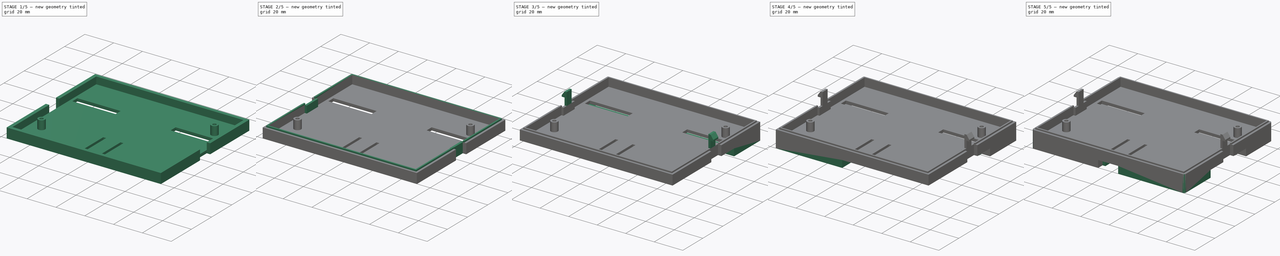
[diagram: build sequence overview — one tinted view per stage of 5, left to right]
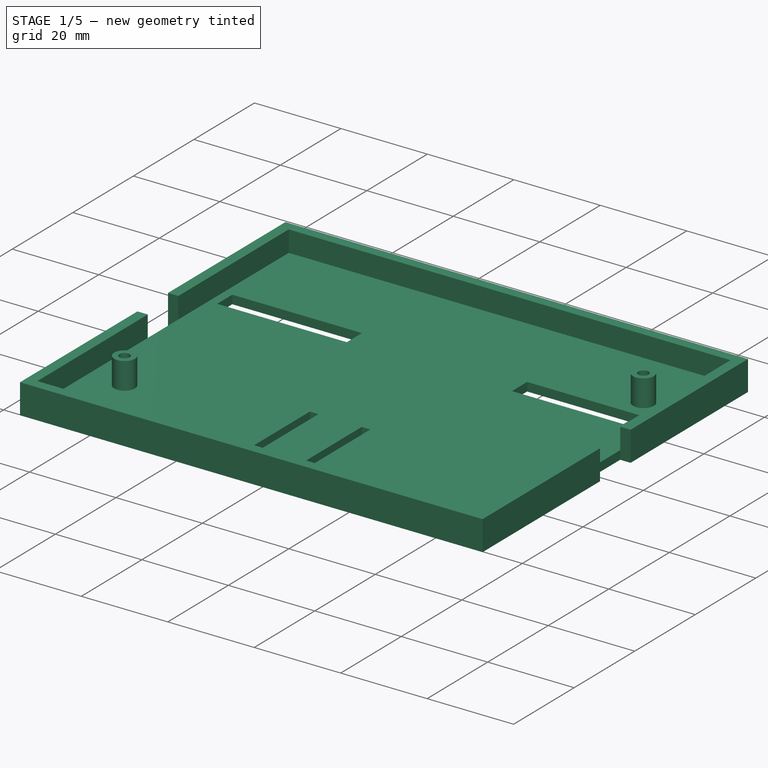
[diagram: stage 1 of 5 — iso view after this stage's code; geometry added in this stage tinted green]
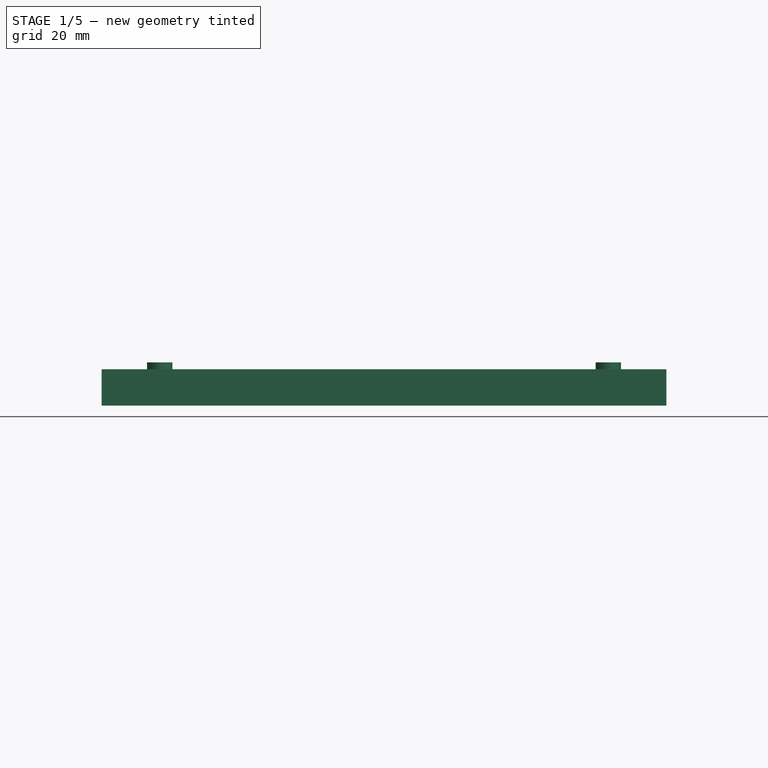
[diagram: stage 1 of 5 — front view after this stage's code; geometry added in this stage tinted green]
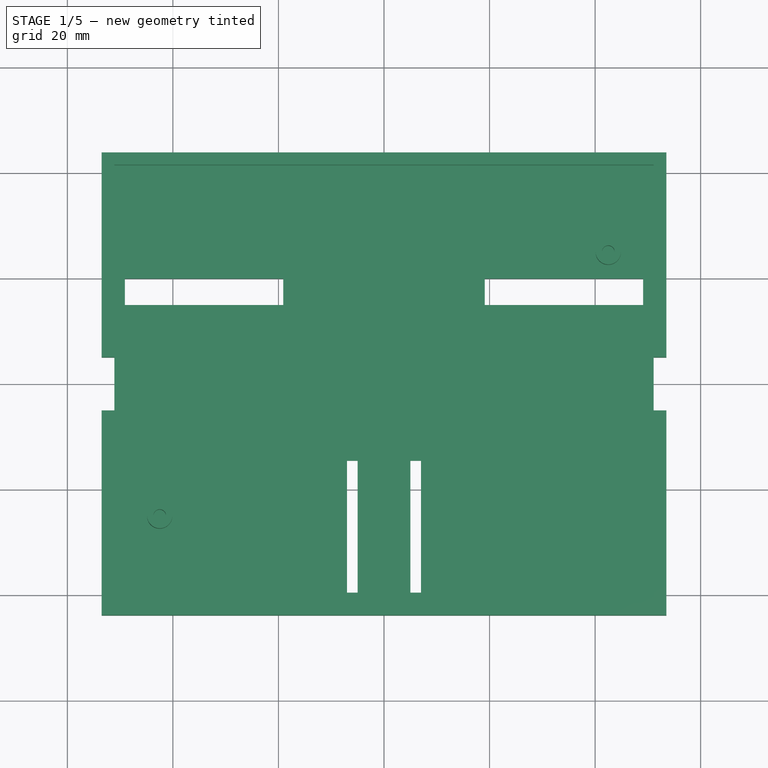
[diagram: stage 1 of 5 — top view after this stage's code; geometry added in this stage tinted green]
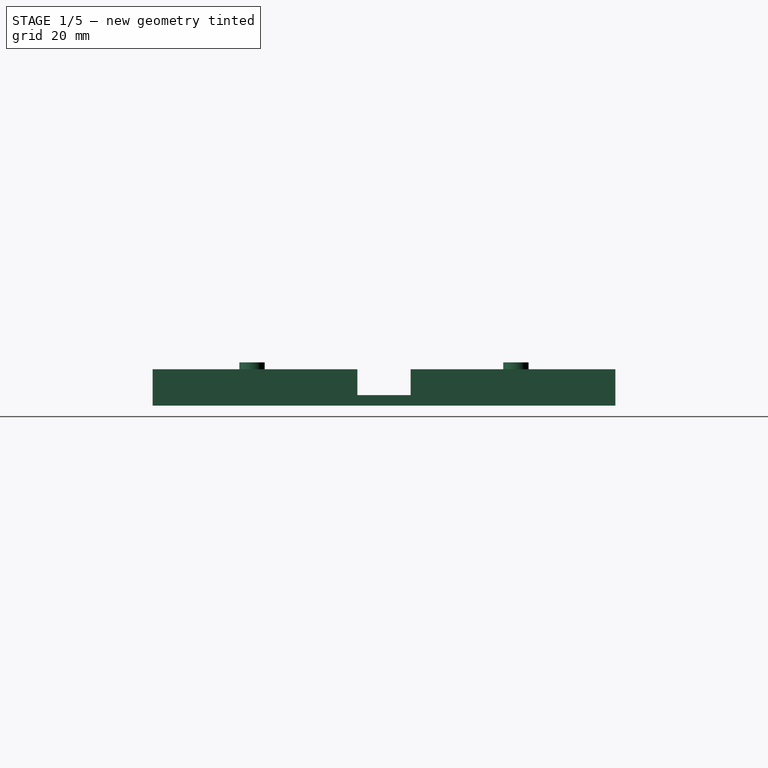
[diagram: stage 1 of 5 — right view after this stage's code; geometry added in this stage tinted green]
FCSTD DOCUMENT  (FreeCAD 1.0R39285 (Git))
Label: Base de la Pieza (2023-1283)
License: All rights reserved
LicenseURL: https://en.wikipedia.org/wiki/All_rights_reserved
objects: Sketcher::SketchObject×11, PartDesign::Pad×11, PartDesign::Mirrored×8, PartDesign::Chamfer×1, PartDesign::Fillet×1, PartDesign::Body×1
note: 78 computed .brp shape members not serialized (recipe doc carries the construction recipe); baked Part::Feature solids carry a one-line shape summary decoded from their .brp

FEATURE [Sketcher::SketchObject] Sketch
  ArcFitTolerance = 1e-06
  AttachmentSupport = -> [XY_Plane]
  FullyConstrained = true
  MakeInternals = false
  MapMode = 5
  sketch-geometry (21):
    g0: LineSegment StartX=-51.1 StartY=41.5 StartZ=0 EndX=-51.1 EndY=-41.5 EndZ=0
    g1: LineSegment StartX=-51.1 StartY=-41.5 StartZ=0 EndX=51.1 EndY=-41.5 EndZ=0
    g2: LineSegment StartX=51.1 StartY=-41.5 StartZ=0 EndX=51.1 EndY=41.5 EndZ=0
    g3: LineSegment StartX=51.1 StartY=41.5 StartZ=0 EndX=-51.1 EndY=41.5 EndZ=0
    g4: GeomPoint [constr] X=0 Y=0 Z=0
    g5: LineSegment StartX=19.1 StartY=20 StartZ=0 EndX=19.1 EndY=15 EndZ=0
    g6: LineSegment StartX=19.1 StartY=15 StartZ=0 EndX=49.1 EndY=15 EndZ=0
    g7: LineSegment StartX=49.1 StartY=15 StartZ=0 EndX=49.1 EndY=20 EndZ=0
    g8: LineSegment StartX=49.1 StartY=20 StartZ=0 EndX=19.1 EndY=20 EndZ=0
    g9: LineSegment StartX=-19.1 StartY=20 StartZ=0 EndX=-19.1 EndY=15 EndZ=0
    g10: LineSegment StartX=-19.1 StartY=15 StartZ=0 EndX=-49.1 EndY=15 EndZ=0
    g11: LineSegment StartX=-49.1 StartY=15 StartZ=0 EndX=-49.1 EndY=20 EndZ=0
    g12: LineSegment StartX=-49.1 StartY=20 StartZ=0 EndX=-19.1 EndY=20 EndZ=0
    g13: LineSegment StartX=5 StartY=-14.5 StartZ=0 EndX=5 EndY=-39.5 EndZ=0
    g14: LineSegment StartX=5 StartY=-39.5 StartZ=0 EndX=7 EndY=-39.5 EndZ=0
    g15: LineSegment StartX=7 StartY=-39.5 StartZ=0 EndX=7 EndY=-14.5 EndZ=0
    g16: LineSegment StartX=7 StartY=-14.5 StartZ=0 EndX=5 EndY=-14.5 EndZ=0
    g17: LineSegment StartX=-5 StartY=-14.5 StartZ=0 EndX=-5 EndY=-39.5 EndZ=0
    g18: LineSegment StartX=-5 StartY=-39.5 StartZ=0 EndX=-7 EndY=-39.5 EndZ=0
    g19: LineSegment StartX=-7 StartY=-39.5 StartZ=0 EndX=-7 EndY=-14.5 EndZ=0
    g20: LineSegment StartX=-7 StartY=-14.5 StartZ=0 EndX=-5 EndY=-14.5 EndZ=0
  constraints (58):
    c: Coincident(g0,g1)
    c: Coincident(g1,g2)
    c: Coincident(g2,g3)
    c: Coincident(g3,g0)
    c: Vertical(g0)
    c: Vertical(g2)
    c: Horizontal(g1)
    c: Horizontal(g3)
    c: Symmetric(g2,g0,g4)
    c: Coincident(g4,g-1)
    c: DistanceX(g3,g3) = 102.2
    c: DistanceY(g2,g2) = 83
    c: Coincident(g5,g6)
    c: Coincident(g6,g7)
    c: Coincident(g7,g8)
    c: Coincident(g8,g5)
    c: Vertical(g5)
    c: Vertical(g7)
    c: Horizontal(g6)
    c: Horizontal(g8)
    c: Distance(g-1,g6) = 15
    c: Distance(g7,g7) = 5
    c: Distance(g2,g7) = 2
    c: DistanceX(g8,g8) = 30
    c: Coincident(g9,g10)
    c: Coincident(g10,g11)
    c: Coincident(g11,g12)
    c: Coincident(g12,g9)
    c: Vertical(g9)
    c: Vertical(g11)
    c: Horizontal(g10)
    c: Horizontal(g12)
    c: Distance(g11,g11) = 5
    c: Symmetric(g9,g5,g-2)
    c: Equal(g8,g12)
    c: Coincident(g13,g14)
    c: Coincident(g14,g15)
    c: Coincident(g15,g16)
    c: Coincident(g16,g13)
    c: Vertical(g13)
    c: Vertical(g15)
    c: Horizontal(g14)
    c: Horizontal(g16)
    c: Distance(g16,g16) = 2
    c: Distance(g-2,g13) = 5
    c: DistanceY(g15,g15) = 25
    c: Distance(g1,g14) = 2
    c: Coincident(g17,g18)
    c: Coincident(g18,g19)
    c: Coincident(g19,g20)
    c: Coincident(g20,g17)
    c: Vertical(g17)
    c: Vertical(g19)
    c: Horizontal(g18)
    c: Horizontal(g20)
    c: Distance(g20,g20) = 2
    c: Symmetric(g17,g13,g-2)
    c: Equal(g17,g13)
FEATURE [PartDesign::Pad] Pad
  Direction = (0,0,1)
  Length = 2
  Length2 = 10
  Profile = -> Sketch
  ReferenceAxis = -> Sketch [N_Axis]
  Refine = true
  Suppressed = false
  Type = 0
FEATURE [Sketcher::SketchObject] Sketch001
  ArcFitTolerance = 1e-06
  AttachmentSupport = -> [Pad]
  FullyConstrained = true
  MakeInternals = false
  MapMode = 5
  Placement = pos=(0,0,2) rot=(0,0,1;0rad)
  sketch-geometry (4):
    g0: Circle CenterX=-42.5 CenterY=-25 CenterZ=0 NormalX=0 NormalY=0 NormalZ=1 AngleXU=0 Radius=1.2
    g1: Circle CenterX=-42.5 CenterY=-25 CenterZ=0 NormalX=0 NormalY=0 NormalZ=1 AngleXU=0 Radius=2.4
    g2: Circle CenterX=42.5 CenterY=25 CenterZ=0 NormalX=0 NormalY=0 NormalZ=1 AngleXU=0 Radius=1.2
    g3: Circle CenterX=42.5 CenterY=25 CenterZ=0 NormalX=0 NormalY=0 NormalZ=1 AngleXU=0 Radius=2.4
  constraints (10):
    c: Coincident(g1,g0)
    c: Coincident(g3,g2)
    c: Equal(g0,g2)
    c: Equal(g3,g1)
    c: Distance(g2,g-2) = 42.5
    c: Distance(g0,g-2) = 42.5
    c: Distance(g2,g-1) = 25
    c: Distance(g0,g-1) = 25
    c: Diameter(g2) = 2.4
    c: Diameter(g3) = 4.8
FEATURE [PartDesign::Pad] Pad001
  BaseFeature = -> Pad
  Direction = (0,0,1)
  Length = 6.2
  Length2 = 10
  Profile = -> Sketch001
  ReferenceAxis = -> Sketch001 [N_Axis]
  Refine = true
  Suppressed = false
  Type = 0
FEATURE [Sketcher::SketchObject] Sketch002
  ArcFitTolerance = 1e-06
  AttachmentSupport = -> [XY_Plane]
  ExternalGeometry = -> [Pad001]
  FullyConstrained = true
  MakeInternals = false
  MapMode = 5
  sketch-geometry (8):
    g0: LineSegment StartX=-51.1 StartY=41.5 StartZ=0 EndX=51.1 EndY=41.5 EndZ=0
    g1: LineSegment StartX=51.1 StartY=41.5 StartZ=0 EndX=51.1 EndY=5.05 EndZ=0
    g2: LineSegment StartX=51.1 StartY=5.05 StartZ=0 EndX=53.5 EndY=5.05 EndZ=0
    g3: LineSegment StartX=53.5 StartY=5.05 StartZ=0 EndX=53.5 EndY=43.85 EndZ=0
    g4: LineSegment StartX=53.5 StartY=43.85 StartZ=0 EndX=-53.5 EndY=43.85 EndZ=0
    g5: LineSegment StartX=-53.5 StartY=43.85 StartZ=0 EndX=-53.5 EndY=5.05 EndZ=0
    g6: LineSegment StartX=-51.1 StartY=41.5 StartZ=0 EndX=-51.1 EndY=5.05 EndZ=0
    g7: LineSegment StartX=-51.1 StartY=5.05 StartZ=0 EndX=-53.5 EndY=5.05 EndZ=0
  constraints (21):
    c: Coincident(g0,g-4)
    c: Coincident(g0,g-5)
    c: Coincident(g1,g0)
    c: PointOnObject(g1,g-5)
    c: Coincident(g2,g1)
    c: Horizontal(g2)
    c: Coincident(g3,g2)
    c: Vertical(g3)
    c: Coincident(g4,g3)
    c: Horizontal(g4)
    c: Coincident(g5,g4)
    c: Vertical(g5)
    c: Coincident(g6,g0)
    c: PointOnObject(g6,g-4)
    c: Coincident(g7,g6)
    c: Coincident(g7,g5)
    c: Horizontal(g7)
    c: Symmetric(g5,g2,g-2)
    c: Distance(g4,g4) = 107
    c: DistanceY(g-1,g3) = 43.85
    c: DistanceY(g-1,g2) = 5.05
FEATURE [PartDesign::Pad] Pad002
  BaseFeature = -> Pad001
  Direction = (0,0,1)
  Length = 6.9
  Length2 = 10
  Profile = -> Sketch002
  ReferenceAxis = -> Sketch002 [N_Axis]
  Refine = true
  Suppressed = false
  Type = 0
FEATURE [PartDesign::Mirrored] Mirrored
  BaseFeature = -> Pad002
  MirrorPlane = -> XZ_Plane
  Originals = -> [Pad002]
  Refine = true
  Suppressed = false
  TransformMode = 0
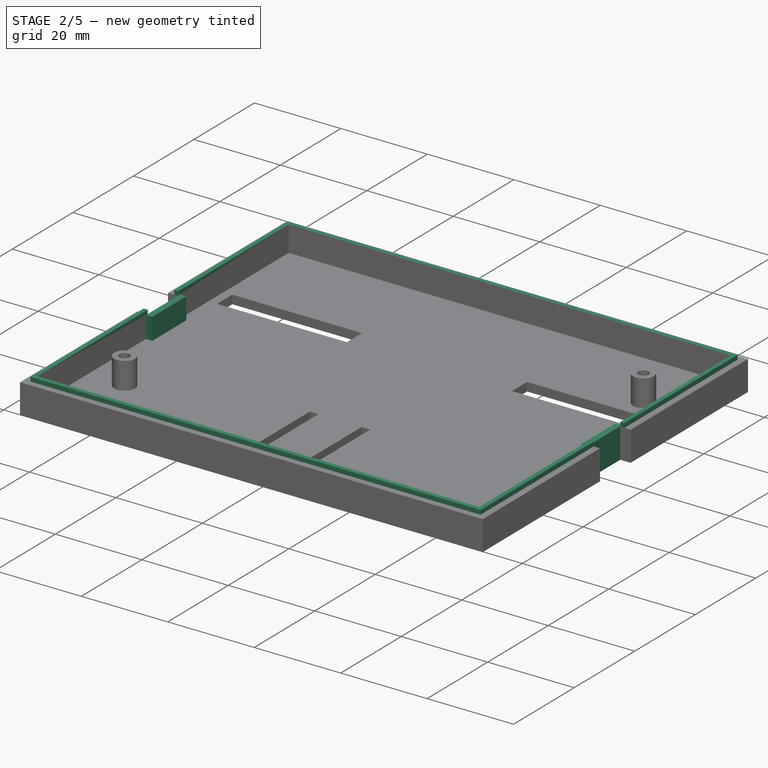
[diagram: stage 2 of 5 — iso view after this stage's code; geometry added in this stage tinted green]
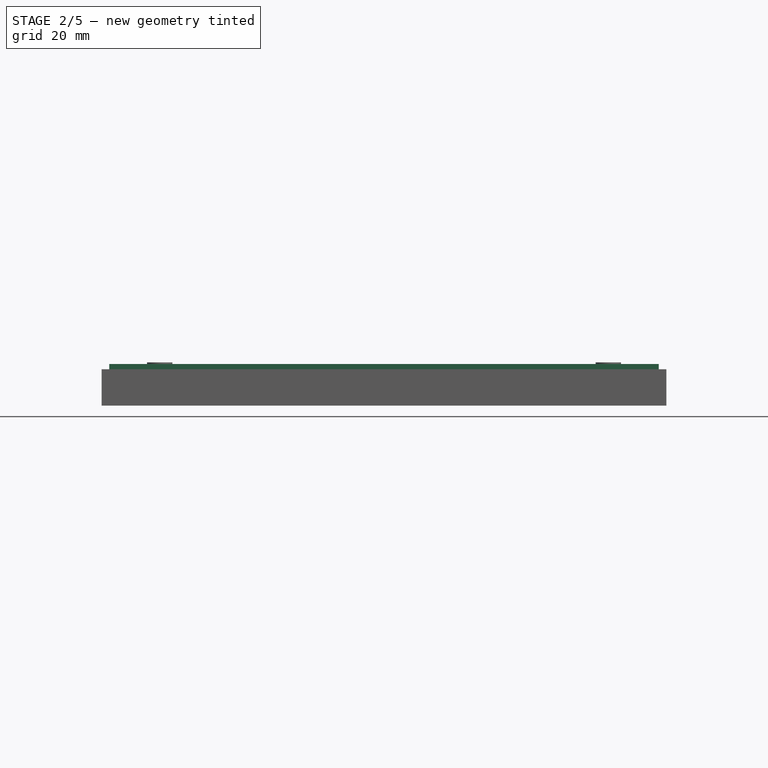
[diagram: stage 2 of 5 — front view after this stage's code; geometry added in this stage tinted green]
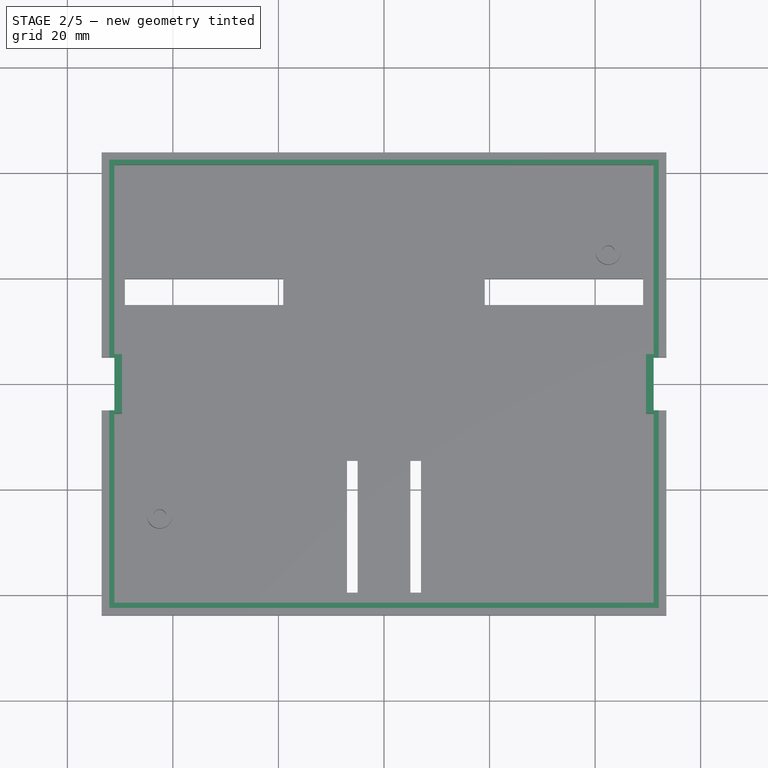
[diagram: stage 2 of 5 — top view after this stage's code; geometry added in this stage tinted green]
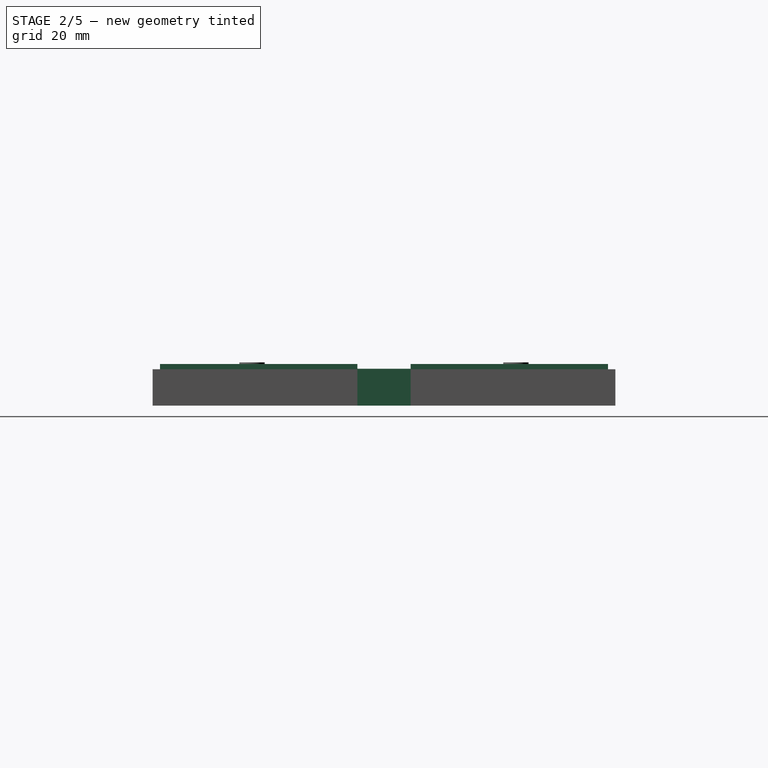
[diagram: stage 2 of 5 — right view after this stage's code; geometry added in this stage tinted green]
FEATURE [Sketcher::SketchObject] Sketch003
  ArcFitTolerance = 1e-06
  AttachmentSupport = -> [Mirrored]
  ExternalGeometry = -> [Mirrored]
  FullyConstrained = true
  MakeInternals = false
  MapMode = 5
  Placement = pos=(0,0,6.9) rot=(0,0,1;0rad)
  sketch-geometry (8):
    g0: LineSegment StartX=-51.1 StartY=5.05 StartZ=0 EndX=-51.1 EndY=41.5 EndZ=0
    g1: LineSegment StartX=-51.1 StartY=41.5 StartZ=0 EndX=51.1 EndY=41.5 EndZ=0
    g2: LineSegment StartX=51.1 StartY=41.5 StartZ=0 EndX=51.1 EndY=5.05 EndZ=0
    g3: LineSegment StartX=-51.1 StartY=5.05 StartZ=0 EndX=-52.05 EndY=5.05 EndZ=0
    g4: LineSegment StartX=-52.05 StartY=5.05 StartZ=0 EndX=-52.05 EndY=42.45 EndZ=0
    g5: LineSegment StartX=-52.05 StartY=42.45 StartZ=0 EndX=52.05 EndY=42.45 EndZ=0
    g6: LineSegment StartX=51.1 StartY=5.05 StartZ=0 EndX=52.05 EndY=5.05 EndZ=0
    g7: LineSegment StartX=52.05 StartY=5.05 StartZ=0 EndX=52.05 EndY=42.45 EndZ=0
  constraints (20):
    c: Coincident(g0,g-3)
    c: Coincident(g0,g-4)
    c: Coincident(g1,g0)
    c: Coincident(g1,g-5)
    c: Coincident(g2,g1)
    c: Coincident(g2,g-5)
    c: Coincident(g3,g0)
    c: Horizontal(g3)
    c: Coincident(g4,g3)
    c: Vertical(g4)
    c: Coincident(g5,g4)
    c: Horizontal(g5)
    c: Coincident(g6,g2)
    c: Horizontal(g6)
    c: Coincident(g7,g6)
    c: Coincident(g7,g5)
    c: Vertical(g7)
    c: Equal(g3,g6)
    c: Distance(g4,g0) = 0.95
    c: Distance(g5,g1) = 0.95
FEATURE [PartDesign::Pad] Pad003
  BaseFeature = -> Mirrored
  Direction = (0,0,1)
  Length = 1
  Length2 = 10
  Profile = -> Sketch003
  ReferenceAxis = -> Sketch003 [N_Axis]
  Refine = true
  Suppressed = false
  Type = 0
FEATURE [PartDesign::Mirrored] Mirrored001
  BaseFeature = -> Pad003
  MirrorPlane = -> XZ_Plane
  Originals = -> [Pad003]
  Refine = true
  Suppressed = false
  TransformMode = 0
FEATURE [Sketcher::SketchObject] Sketch004
  ArcFitTolerance = 1e-06
  AttachmentSupport = -> [Mirrored001]
  ExternalGeometry = -> [Mirrored001]
  FullyConstrained = true
  MakeInternals = false
  MapMode = 5
  Placement = pos=(0,0,2) rot=(0,0,1;0rad)
  sketch-geometry (4):
    g0: LineSegment StartX=51.1 StartY=5.6 StartZ=0 EndX=49.65 EndY=5.6 EndZ=0
    g1: LineSegment StartX=49.65 StartY=5.6 StartZ=0 EndX=49.65 EndY=-5.6 EndZ=0
    g2: LineSegment StartX=49.65 StartY=-5.6 StartZ=0 EndX=51.1 EndY=-5.6 EndZ=0
    g3: LineSegment StartX=51.1 StartY=-5.6 StartZ=0 EndX=51.1 EndY=5.6 EndZ=0
  constraints (11):
    c: Coincident(g0,g1)
    c: Coincident(g1,g2)
    c: Coincident(g2,g3)
    c: Coincident(g3,g0)
    c: Horizontal(g0)
    c: Horizontal(g2)
    c: Vertical(g3)
    c: PointOnObject(g0,g-3)
    c: Symmetric(g1,g0,g-1)
    c: Distance(g3,g1) = 1.45
    c: DistanceY(g1,g0) = 11.2
FEATURE [PartDesign::Pad] Pad004
  BaseFeature = -> Mirrored001
  Direction = (0,0,1)
  Length = 5
  Length2 = 10
  Profile = -> Sketch004
  ReferenceAxis = -> Sketch004 [N_Axis]
  Refine = true
  Suppressed = false
  Type = 0
FEATURE [PartDesign::Mirrored] Mirrored002
  BaseFeature = -> Pad004
  MirrorPlane = -> YZ_Plane
  Originals = -> [Pad004]
  Refine = true
  Suppressed = false
  TransformMode = 0
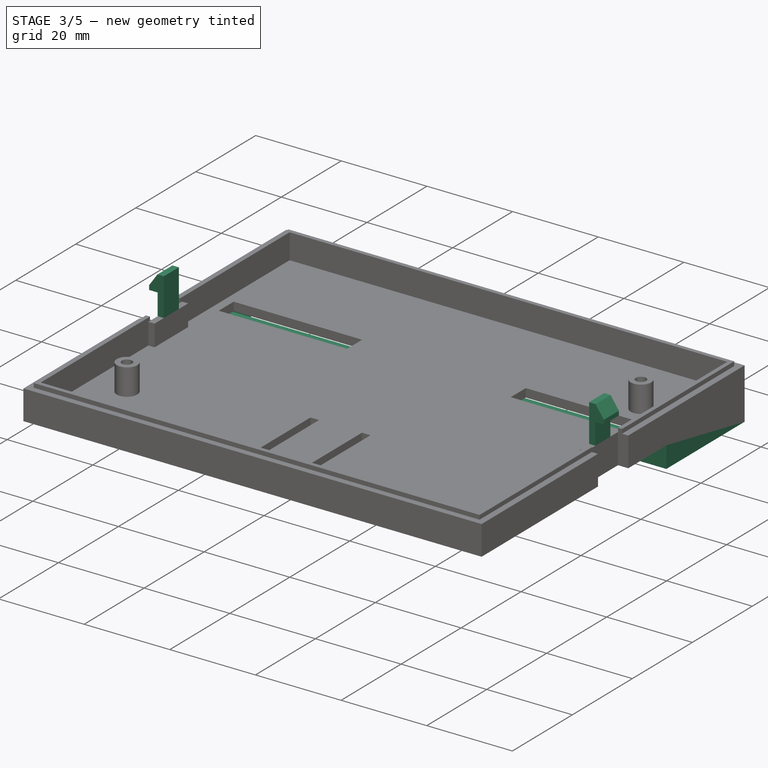
[diagram: stage 3 of 5 — iso view after this stage's code; geometry added in this stage tinted green]
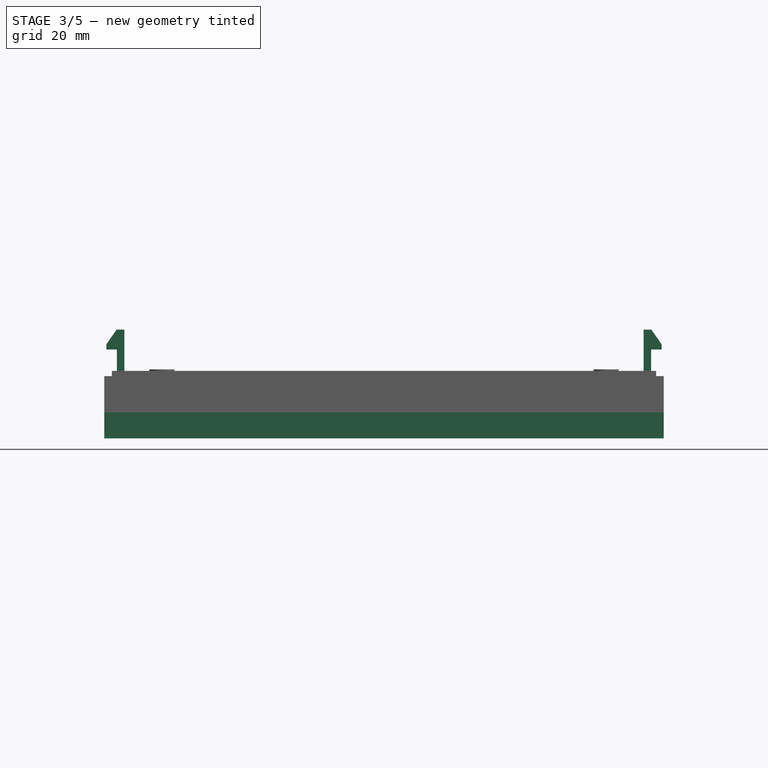
[diagram: stage 3 of 5 — front view after this stage's code; geometry added in this stage tinted green]
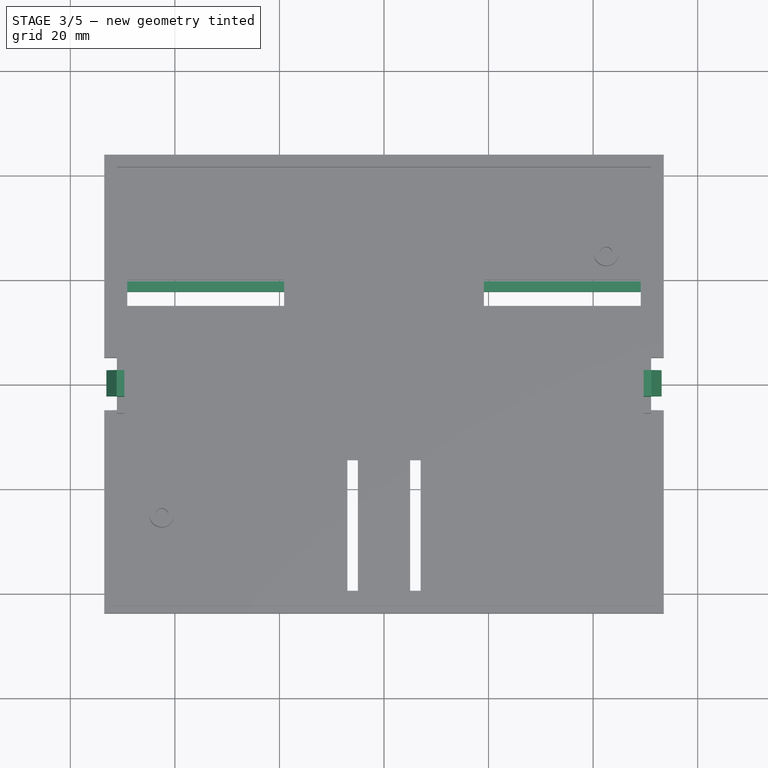
[diagram: stage 3 of 5 — top view after this stage's code; geometry added in this stage tinted green]
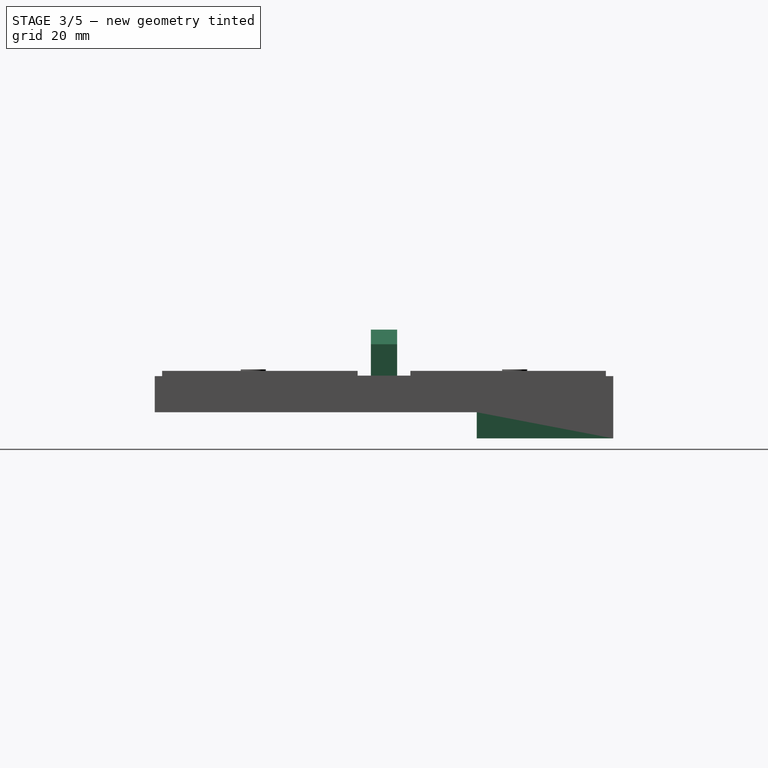
[diagram: stage 3 of 5 — right view after this stage's code; geometry added in this stage tinted green]
FEATURE [Sketcher::SketchObject] Sketch005
  ArcFitTolerance = 1e-06
  AttachmentSupport = -> [Mirrored002]
  ExternalGeometry = -> [Mirrored002]
  FullyConstrained = true
  MakeInternals = false
  MapMode = 5
  Placement = pos=(0,0,7) rot=(0,0,1;0rad)
  sketch-geometry (4):
    g0: LineSegment StartX=49.65 StartY=2.5 StartZ=0 EndX=49.65 EndY=-2.5 EndZ=0
    g1: LineSegment StartX=49.65 StartY=-2.5 StartZ=0 EndX=51.1 EndY=-2.5 EndZ=0
    g2: LineSegment StartX=51.1 StartY=-2.5 StartZ=0 EndX=51.1 EndY=2.5 EndZ=0
    g3: LineSegment StartX=51.1 StartY=2.5 StartZ=0 EndX=49.65 EndY=2.5 EndZ=0
  constraints (11):
    c: Coincident(g0,g1)
    c: Coincident(g1,g2)
    c: Coincident(g2,g3)
    c: Coincident(g3,g0)
    c: Vertical(g2)
    c: Horizontal(g1)
    c: Horizontal(g3)
    c: PointOnObject(g0,g-4)
    c: PointOnObject(g1,g-3)
    c: Symmetric(g0,g0,g-1)
    c: Distance(g2,g2) = 5
FEATURE [PartDesign::Pad] Pad005
  BaseFeature = -> Mirrored002
  Direction = (0,0,1)
  Length = 5
  Length2 = 10
  Profile = -> Sketch005
  ReferenceAxis = -> Sketch005 [N_Axis]
  Refine = true
  Suppressed = false
  Type = 0
FEATURE [PartDesign::Mirrored] Mirrored003
  BaseFeature = -> Pad005
  MirrorPlane = -> YZ_Plane
  Originals = -> [Pad005]
  Refine = true
  Suppressed = false
  TransformMode = 0
FEATURE [Sketcher::SketchObject] Sketch006
  ArcFitTolerance = 1e-06
  AttachmentSupport = -> [Mirrored003]
  ExternalGeometry = -> [Mirrored003]
  FullyConstrained = true
  MakeInternals = false
  MapMode = 5
  Placement = pos=(0,-2.5,0) rot=(1,0,0;1.5708rad)
  sketch-geometry (6):
    g0: LineSegment StartX=49.65 StartY=12 StartZ=0 EndX=51.1 EndY=12 EndZ=0
    g1: LineSegment StartX=51.1 StartY=12 StartZ=0 EndX=53.1 EndY=12 EndZ=0
    g2: LineSegment StartX=49.65 StartY=12 StartZ=0 EndX=49.65 EndY=15.8 EndZ=0
    g3: LineSegment StartX=49.65 StartY=15.8 StartZ=0 EndX=51.15 EndY=15.8 EndZ=0
    g4: LineSegment StartX=53.1 StartY=12 StartZ=0 EndX=53.1 EndY=13 EndZ=0
    g5: LineSegment StartX=53.1 StartY=13 StartZ=0 EndX=51.15 EndY=15.8 EndZ=0
  constraints (16):
    c: Coincident(g0,g-3)
    c: Coincident(g0,g-3)
    c: Distance(g1) = 2
    c: Coincident(g1,g0)
    c: Horizontal(g1)
    c: Distance(g2) = 3.8
    c: Coincident(g2,g0)
    c: Vertical(g2)
    c: Distance(g3) = 1.5
    c: Coincident(g3,g2)
    c: Horizontal(g3)
    c: Distance(g4) = 1
    c: Coincident(g4,g1)
    c: Vertical(g4)
    c: Coincident(g5,g4)
    c: Coincident(g5,g3)
FEATURE [PartDesign::Pad] Pad006
  BaseFeature = -> Mirrored003
  Direction = (0,-1,2e-16)
  Length = 10
  Length2 = 10
  Profile = -> Sketch006
  ReferenceAxis = -> Sketch006 [N_Axis]
  Refine = true
  Suppressed = false
  Type = 3
  UpToFace = -> Mirrored003 [Face11]
FEATURE [PartDesign::Mirrored] Mirrored004
  BaseFeature = -> Pad006
  MirrorPlane = -> YZ_Plane
  Originals = -> [Pad006]
  Refine = true
  Suppressed = false
  TransformMode = 0
FEATURE [Sketcher::SketchObject] Sketch007
  ArcFitTolerance = 1e-06
  AttachmentSupport = -> [Mirrored004]
  ExternalGeometry = -> [Mirrored004]
  FullyConstrained = true
  MakeInternals = false
  MapMode = 5
  Placement = pos=(0,0,0) rot=(1,0,0;3.14159rad)
  sketch-geometry (8):
    g0: LineSegment StartX=53.5 StartY=-43.85 StartZ=0 EndX=-53.5 EndY=-43.85 EndZ=0
    g1: LineSegment StartX=53.5 StartY=-43.85 StartZ=0 EndX=53.5 EndY=-17.75 EndZ=0
    g2: LineSegment StartX=-53.5 StartY=-43.85 StartZ=0 EndX=-53.5 EndY=-17.75 EndZ=0
    g3: LineSegment StartX=-53.5 StartY=-17.75 StartZ=0 EndX=53.5 EndY=-17.75 EndZ=0
    g4: LineSegment StartX=51.1 StartY=-41.45 StartZ=0 EndX=51.1 EndY=-19.75 EndZ=0
    g5: LineSegment StartX=51.1 StartY=-19.75 StartZ=0 EndX=-51.1 EndY=-19.75 EndZ=0
    g6: LineSegment StartX=-51.1 StartY=-19.75 StartZ=0 EndX=-51.1 EndY=-41.45 EndZ=0
    g7: LineSegment StartX=-51.1 StartY=-41.45 StartZ=0 EndX=51.1 EndY=-41.45 EndZ=0
  constraints (22):
    c: Coincident(g0,g-4)
    c: Coincident(g0,g-5)
    c: Coincident(g1,g0)
    c: PointOnObject(g1,g-3)
    c: Coincident(g2,g0)
    c: PointOnObject(g2,g-5)
    c: Coincident(g3,g2)
    c: Coincident(g3,g1)
    c: Horizontal(g3)
    c: Distance(g-1,g3) = 17.75
    c: Coincident(g4,g5)
    c: Coincident(g5,g6)
    c: Coincident(g6,g7)
    c: Coincident(g7,g4)
    c: Vertical(g4)
    c: Vertical(g6)
    c: Horizontal(g5)
    c: Horizontal(g7)
    c: Distance(g3,g5) = 2
    c: Distance(g2,g6) = 2.4
    c: Distance(g1,g4) = 2.4
    c: Distance(g0,g7) = 2.4
FEATURE [PartDesign::Pad] Pad007
  BaseFeature = -> Mirrored004
  Direction = (0,0,-1)
  Length = 5
  Length2 = 10
  Profile = -> Sketch007
  ReferenceAxis = -> Sketch007 [N_Axis]
  Refine = true
  Suppressed = false
  Type = 0
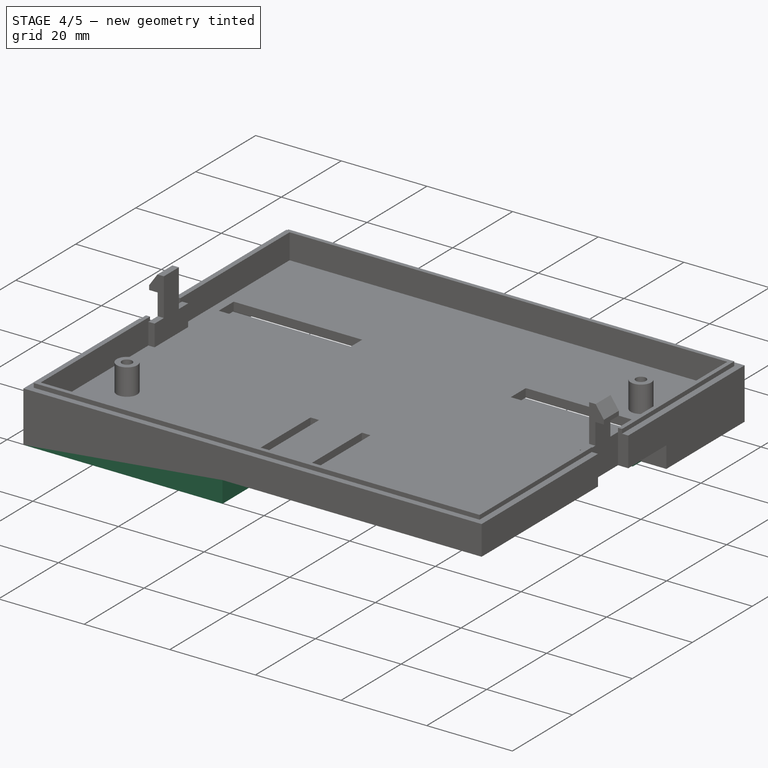
[diagram: stage 4 of 5 — iso view after this stage's code; geometry added in this stage tinted green]
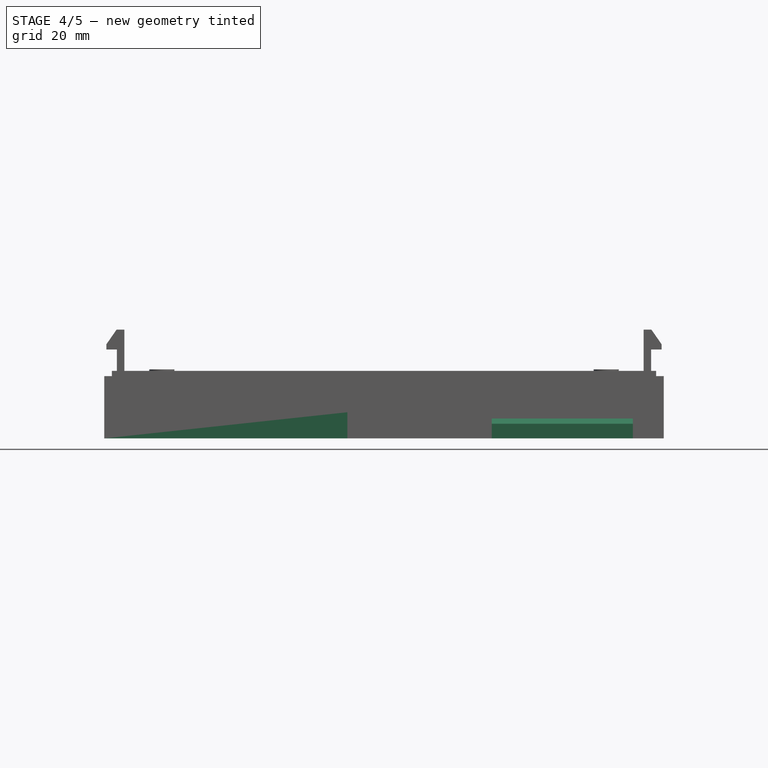
[diagram: stage 4 of 5 — front view after this stage's code; geometry added in this stage tinted green]
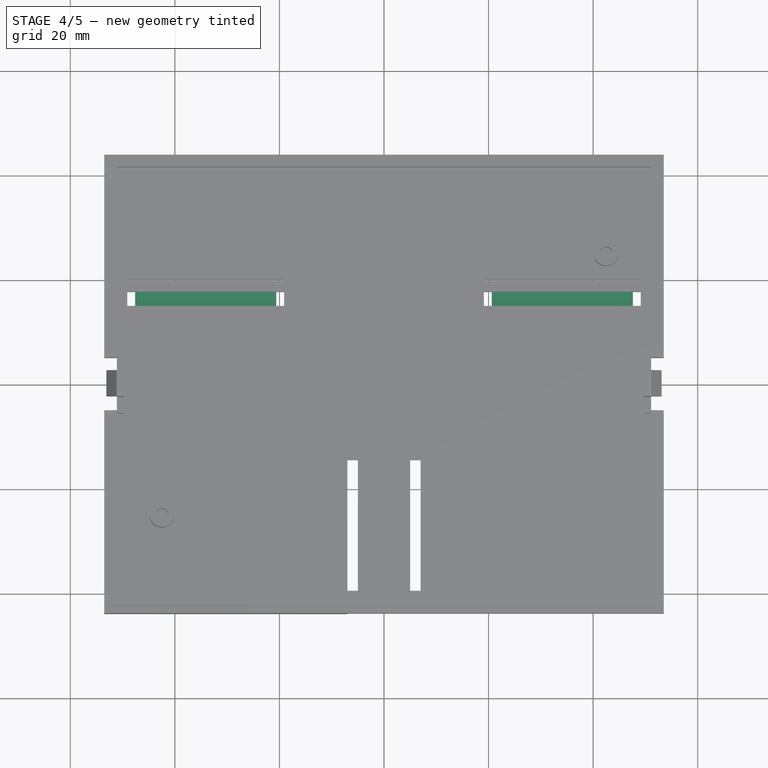
[diagram: stage 4 of 5 — top view after this stage's code; geometry added in this stage tinted green]
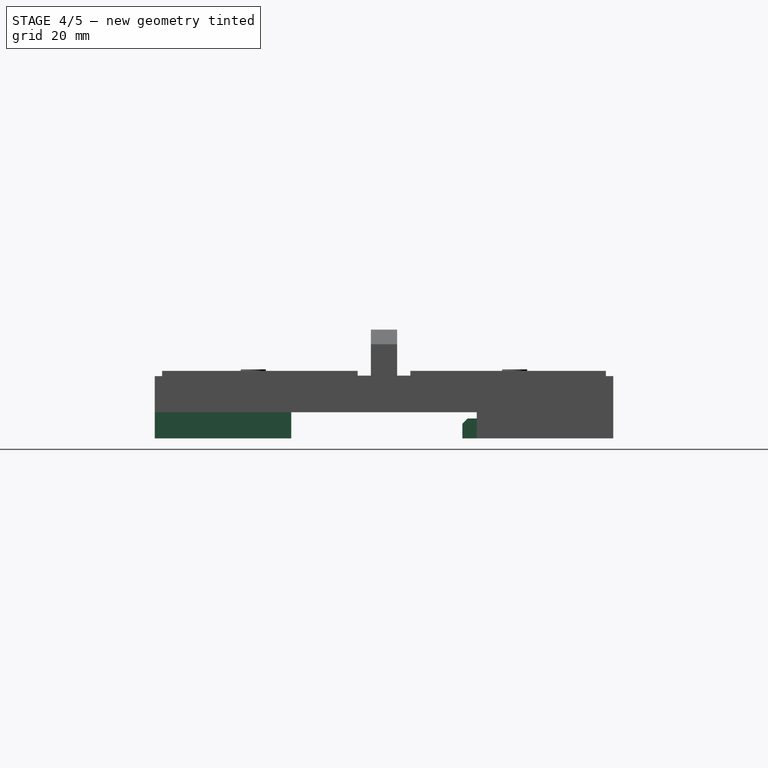
[diagram: stage 4 of 5 — right view after this stage's code; geometry added in this stage tinted green]
FEATURE [Sketcher::SketchObject] Sketch008
  ArcFitTolerance = 1e-06
  AttachmentSupport = -> [Pad007]
  ExternalGeometry = -> [Pad007]
  FullyConstrained = true
  MakeInternals = false
  MapMode = 5
  Placement = pos=(0,0,-5) rot=(1,0,0;3.14159rad)
  sketch-geometry (4):
    g0: LineSegment StartX=47.6 StartY=-17.75 StartZ=0 EndX=47.6 EndY=-15 EndZ=0
    g1: LineSegment StartX=47.6 StartY=-15 StartZ=0 EndX=20.6 EndY=-15 EndZ=0
    g2: LineSegment StartX=20.6 StartY=-15 StartZ=0 EndX=20.6 EndY=-17.75 EndZ=0
    g3: LineSegment StartX=20.6 StartY=-17.75 StartZ=0 EndX=47.6 EndY=-17.75 EndZ=0
  constraints (12):
    c: PointOnObject(g0,g-3)
    c: PointOnObject(g0,g-4)
    c: Vertical(g0)
    c: Coincident(g1,g0)
    c: PointOnObject(g1,g-4)
    c: Coincident(g2,g1)
    c: PointOnObject(g2,g-3)
    c: Vertical(g2)
    c: Coincident(g3,g2)
    c: Coincident(g3,g0)
    c: Distance(g-5,g2) = 1.5
    c: Distance(g-6,g0) = 1.5
FEATURE [PartDesign::Pad] Pad008
  BaseFeature = -> Pad007
  Direction = (0,0,-1)
  Length = 3.8
  Length2 = 10
  Profile = -> Sketch008
  ReferenceAxis = -> Sketch008 [N_Axis]
  Refine = true
  Reversed = true
  Suppressed = false
  Type = 0
FEATURE [PartDesign::Mirrored] Mirrored005
  BaseFeature = -> Pad008
  MirrorPlane = -> YZ_Plane
  Originals = -> [Pad008]
  Refine = true
  Suppressed = false
  TransformMode = 0
FEATURE [PartDesign::Chamfer] Chamfer
  Angle = 45
  Base = -> Mirrored005 [Edge247,Edge239]
  BaseFeature = -> Mirrored005
  ChamferType = 0
  FlipDirection = false
  Refine = true
  Size = 1
  Size2 = 1
  SupportTransform = false
  Suppressed = false
  UseAllEdges = false
FEATURE [Sketcher::SketchObject] Sketch009
  ArcFitTolerance = 1e-06
  AttachmentSupport = -> [Chamfer]
  ExternalGeometry = -> [Chamfer]
  FullyConstrained = true
  MakeInternals = false
  MapMode = 5
  Placement = pos=(0,0,0) rot=(1,0,0;3.14159rad)
  sketch-geometry (8):
    g0: LineSegment StartX=-53.5 StartY=43.85 StartZ=0 EndX=-53.5 EndY=17.75 EndZ=0
    g1: LineSegment StartX=-53.5 StartY=17.75 StartZ=0 EndX=-7 EndY=17.75 EndZ=0
    g2: LineSegment StartX=-7 StartY=17.75 StartZ=0 EndX=-7 EndY=43.85 EndZ=0
    g3: LineSegment StartX=-7 StartY=43.85 StartZ=0 EndX=-53.5 EndY=43.85 EndZ=0
    g4: LineSegment StartX=-9 StartY=19.75 StartZ=0 EndX=-9 EndY=41.45 EndZ=0
    g5: LineSegment StartX=-9 StartY=41.45 StartZ=0 EndX=-51.1 EndY=41.45 EndZ=0
    g6: LineSegment StartX=-51.1 StartY=41.45 StartZ=0 EndX=-51.1 EndY=19.75 EndZ=0
    g7: LineSegment StartX=-51.1 StartY=19.75 StartZ=0 EndX=-9 EndY=19.75 EndZ=0
  constraints (23):
    c: Coincident(g0,g-4)
    c: PointOnObject(g0,g-4)
    c: Coincident(g1,g0)
    c: Horizontal(g1)
    c: Coincident(g2,g1)
    c: PointOnObject(g2,g-3)
    c: Vertical(g2)
    c: Coincident(g3,g2)
    c: Coincident(g3,g0)
    c: Distance(g-1,g1) = 17.75
    c: Coincident(g4,g5)
    c: Coincident(g5,g6)
    c: Coincident(g6,g7)
    c: Coincident(g7,g4)
    c: Vertical(g4)
    c: Vertical(g6)
    c: Horizontal(g5)
    c: Horizontal(g7)
    c: Distance(g3,g5) = 2.4
    c: Distance(g0,g6) = 2.4
    c: Distance(g2,g4) = 2
    c: Distance(g1,g7) = 2
    c: PointOnObject(g1,g-5)
FEATURE [PartDesign::Pad] Pad009
  BaseFeature = -> Chamfer
  Direction = (0,0,-1)
  Length = 5
  Length2 = 10
  Profile = -> Sketch009
  ReferenceAxis = -> Sketch009 [N_Axis]
  Refine = true
  Suppressed = false
  Type = 0
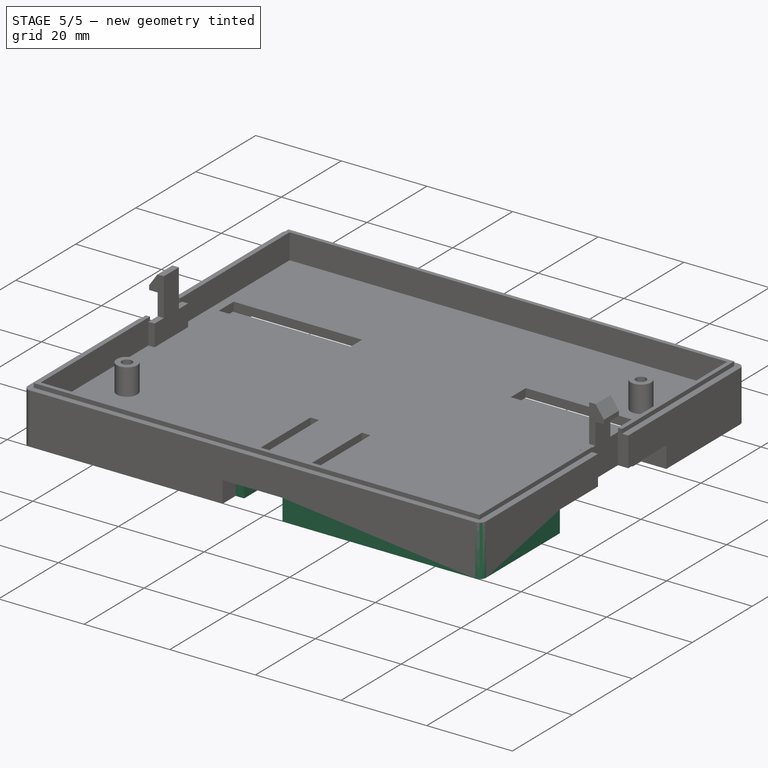
[diagram: stage 5 of 5 — iso view after this stage's code; geometry added in this stage tinted green]
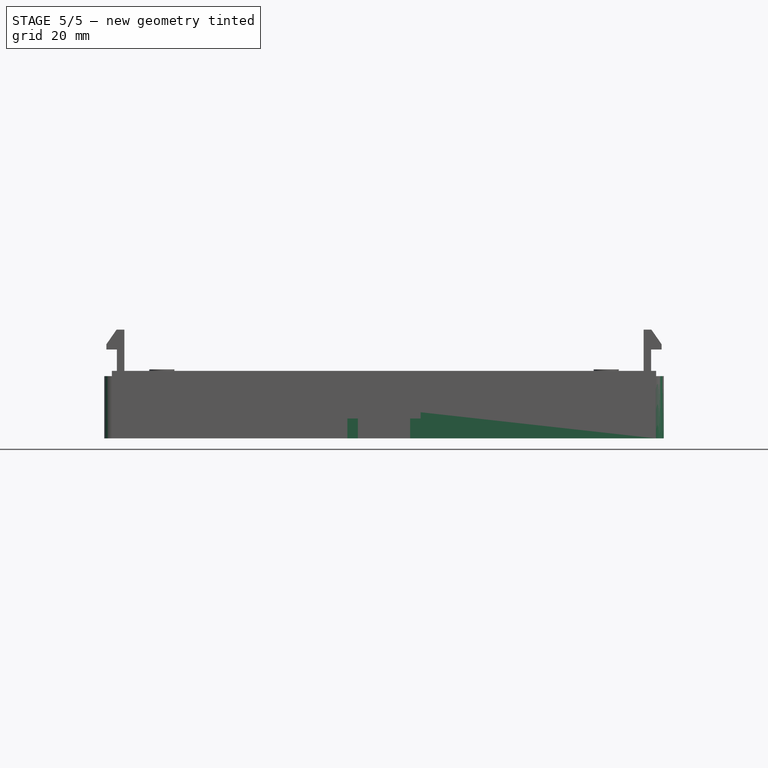
[diagram: stage 5 of 5 — front view after this stage's code; geometry added in this stage tinted green]
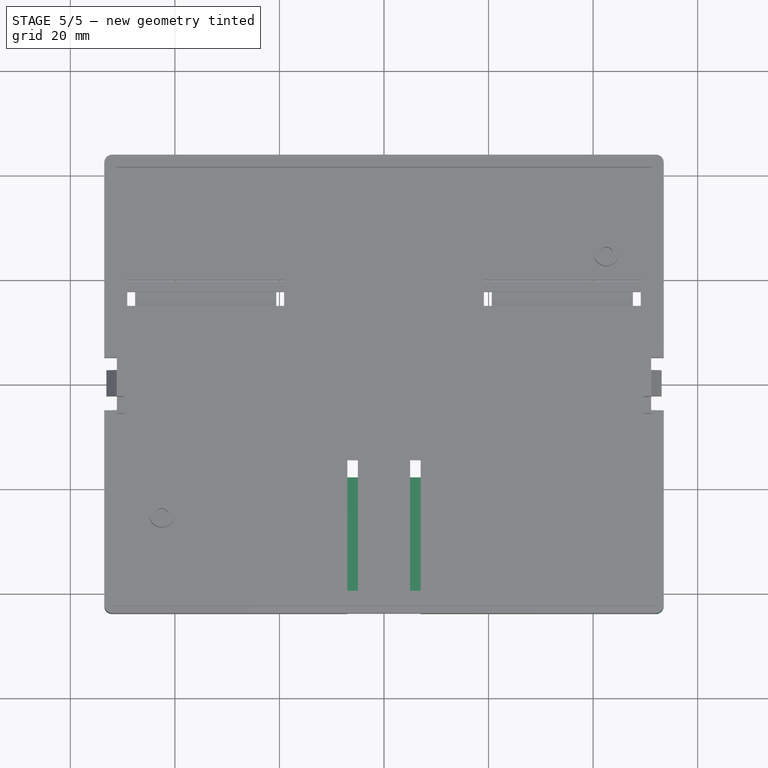
[diagram: stage 5 of 5 — top view after this stage's code; geometry added in this stage tinted green]
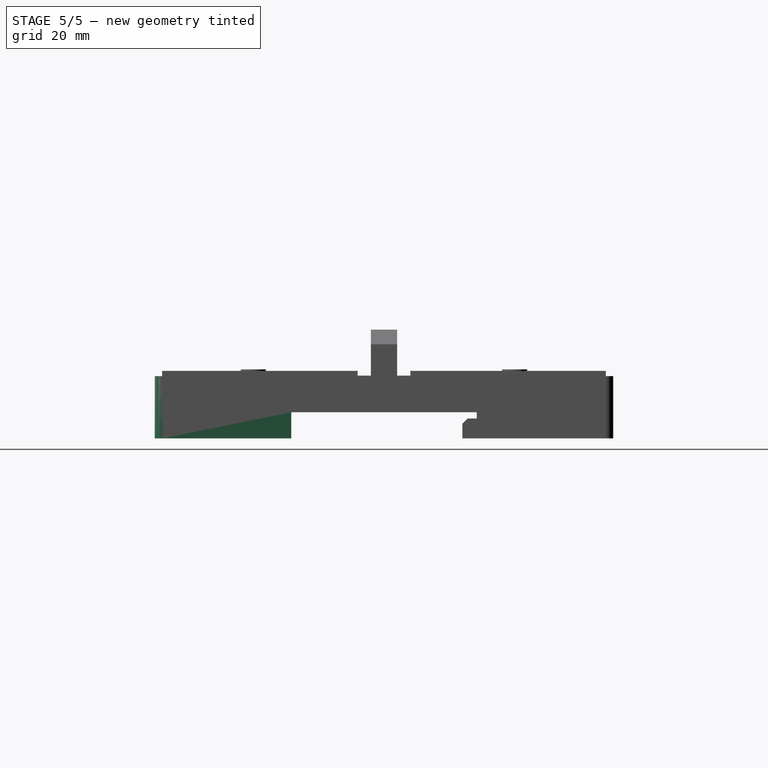
[diagram: stage 5 of 5 — right view after this stage's code; geometry added in this stage tinted green]
FEATURE [PartDesign::Mirrored] Mirrored006
  BaseFeature = -> Pad009
  MirrorPlane = -> YZ_Plane
  Originals = -> [Pad009]
  Refine = true
  Suppressed = false
  TransformMode = 0
FEATURE [Sketcher::SketchObject] Sketch010
  ArcFitTolerance = 1e-06
  AttachmentSupport = -> [Mirrored006]
  ExternalGeometry = -> [Mirrored006]
  FullyConstrained = true
  MakeInternals = false
  MapMode = 5
  Placement = pos=(1.1e-15,0,-5) rot=(1,0,0;3.14159rad)
  sketch-geometry (4):
    g0: LineSegment StartX=7 StartY=17.75 StartZ=0 EndX=7 EndY=39.5 EndZ=0
    g1: LineSegment StartX=7 StartY=39.5 StartZ=0 EndX=5 EndY=39.5 EndZ=0
    g2: LineSegment StartX=5 StartY=39.5 StartZ=0 EndX=5 EndY=17.75 EndZ=0
    g3: LineSegment StartX=5 StartY=17.75 StartZ=0 EndX=7 EndY=17.75 EndZ=0
  constraints (10):
    c: Coincident(g0,g1)
    c: Coincident(g1,g2)
    c: Coincident(g2,g3)
    c: Coincident(g3,g0)
    c: Vertical(g0)
    c: Vertical(g2)
    c: Horizontal(g1)
    c: Horizontal(g3)
    c: Coincident(g0,g-3)
    c: Coincident(g1,g-4)
FEATURE [PartDesign::Pad] Pad010
  BaseFeature = -> Mirrored006
  Direction = (0,0,-1)
  Length = 3.8
  Length2 = 10
  Profile = -> Sketch010
  ReferenceAxis = -> Sketch010 [N_Axis]
  Refine = true
  Reversed = true
  Suppressed = false
  Type = 0
FEATURE [PartDesign::Mirrored] Mirrored007
  BaseFeature = -> Pad010
  MirrorPlane = -> YZ_Plane
  Originals = -> [Pad010]
  Refine = true
  Suppressed = false
  TransformMode = 0
FEATURE [PartDesign::Fillet] Fillet
  Base = -> Mirrored007 [Edge145,Edge131,Edge38,Edge39]
  BaseFeature = -> Mirrored007
  Radius = 1.5
  Refine = true
  SupportTransform = false
  Suppressed = false
  UseAllEdges = false
FEATURE [PartDesign::Body] Body  label="Cuerpo"
  AllowCompound = false
  Group = -> [Sketch,Pad,Sketch001,Pad001,Sketch002,Pad002,Mirrored,Sketch003,Pad003,Mirrored001,Sketch004,Pad004,Mirrored002,Sketch005,Pad005,Mirrored003,Sketch006,Pad006,Mirrored004,Sketch007,Pad007,Sketch008,Pad008,Mirrored005,Chamfer,Sketch009,Pad009,Mirrored006,Sketch010,Pad010,Mirrored007,Fillet]
  Origin = -> Origin
  Tip = -> Fillet
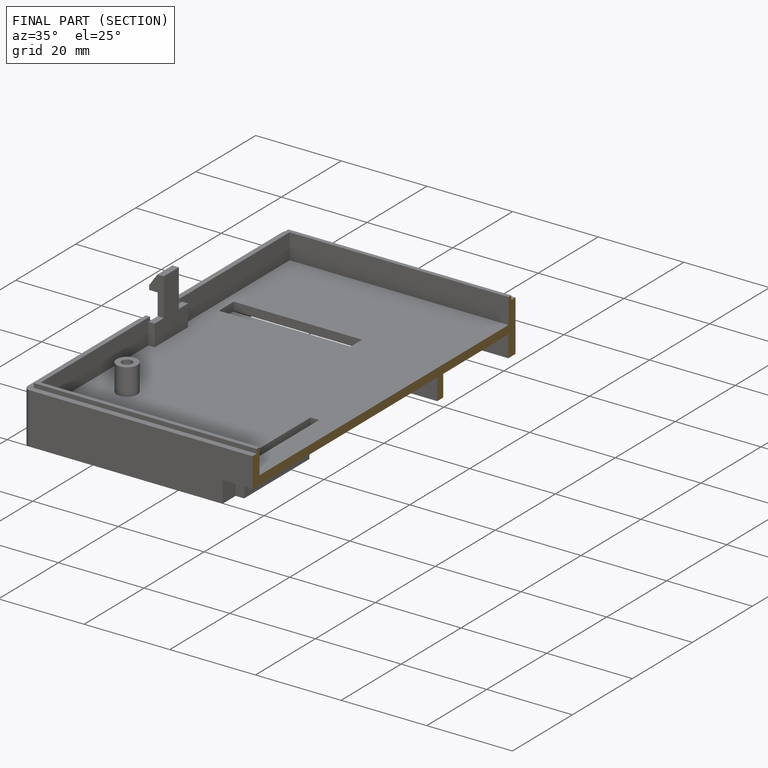
[diagram: finished part — half-section view (interior)]
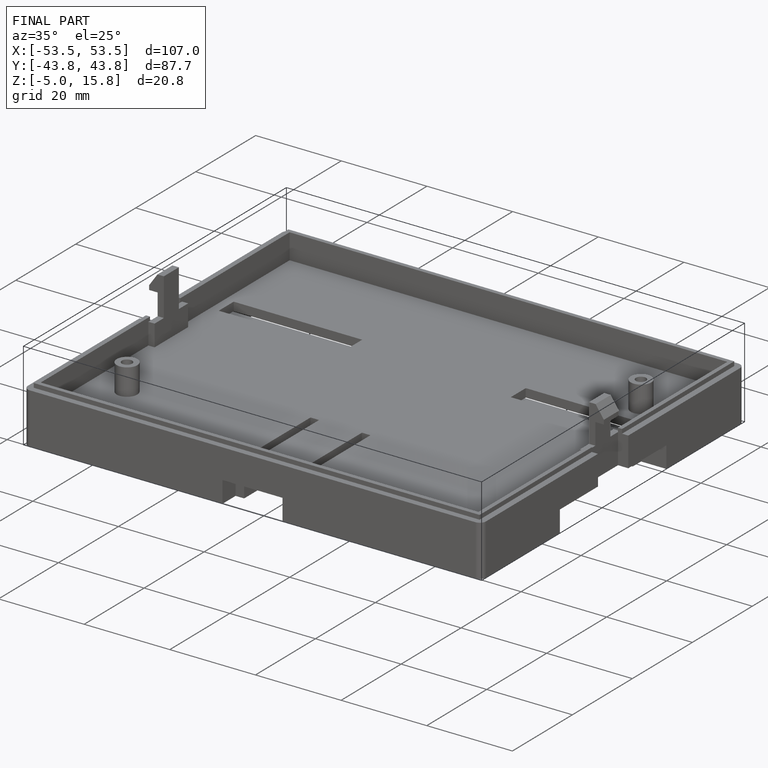
[diagram: finished part — iso view with bounding-box wireframe]
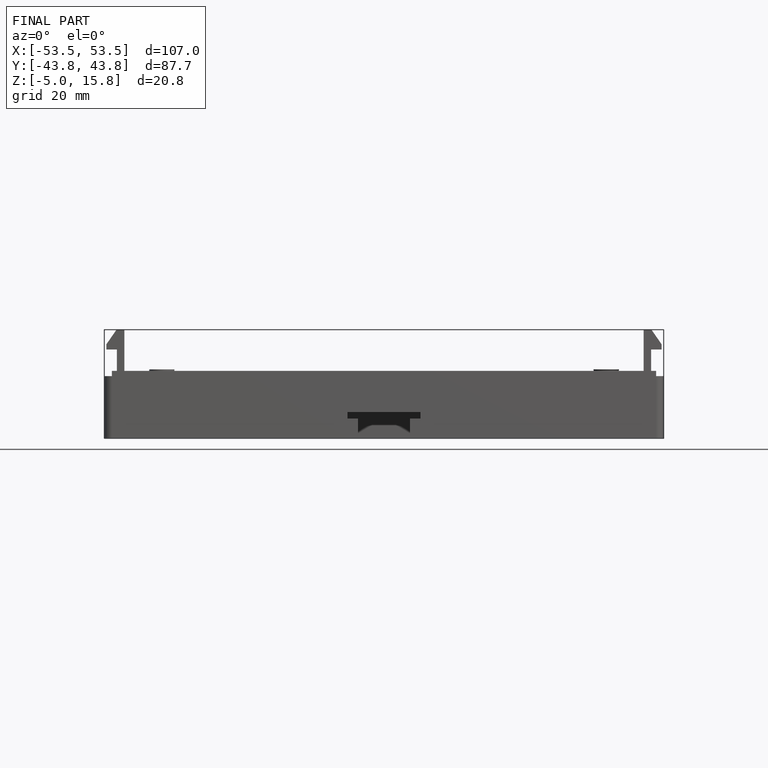
[diagram: finished part — front view with bounding-box wireframe]
